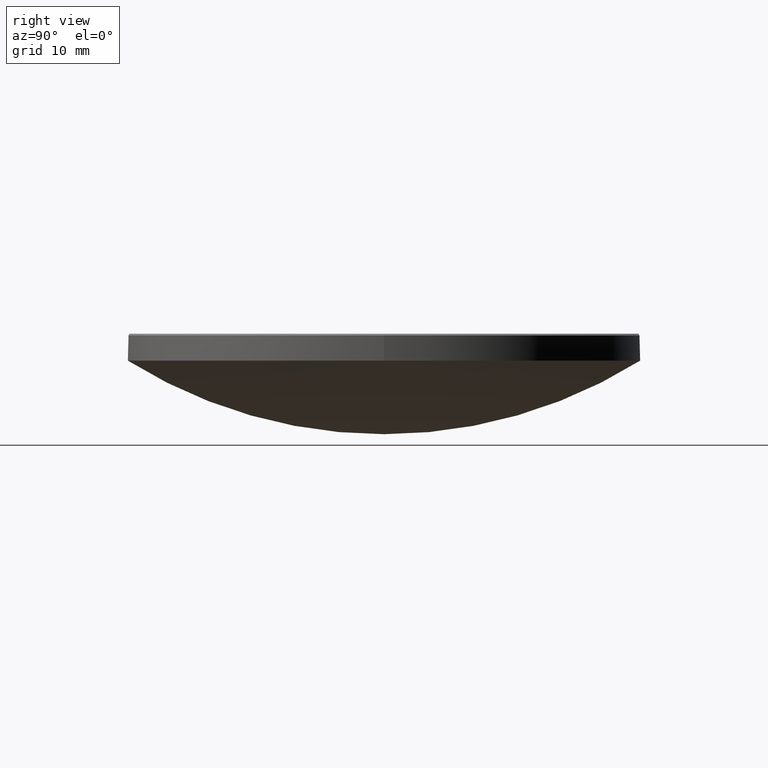
[diagram: clean part render]
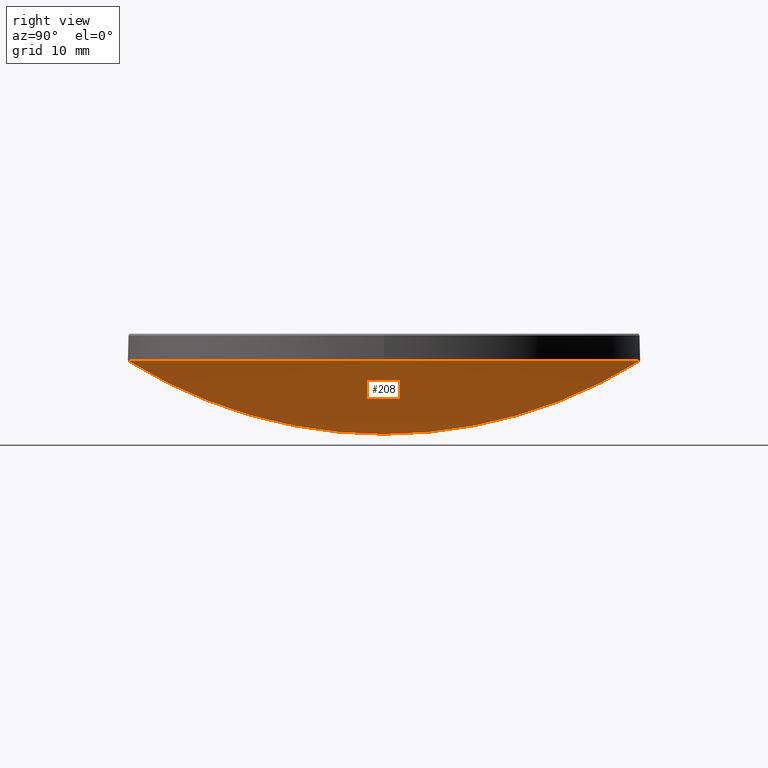
[diagram: same view with one face highlighted and labeled with its STEP entity id]
A machine part, right view. The second image highlights one B-rep face of the part: STEP entity #208.
In plain terms, the highlighted spherical surface has radius 47.87 mm.
Its self-contained STEP definition (entity closure, byte-faithful):
#5 = ORIENTED_EDGE ( 'NONE', *, *, #136, .F. ) ;
#6 = DIRECTION ( 'NONE',  ( -1.224646799147353207E-16, -1.000000000000000000, 0.000000000000000000 ) ) ;
#9 = SPHERICAL_SURFACE ( 'NONE', #123, 47.86999999999999744 ) ;
#20 = CIRCLE ( 'NONE', #178, 47.86999999999999744 ) ;
#21 = CARTESIAN_POINT ( 'NONE',  ( 25.39999999999999503, 3.110602869834276471E-15, 13.00000000000000000 ) ) ;
#22 = DIRECTION ( 'NONE',  ( 1.000000000000000000, 0.000000000000000000, 0.000000000000000000 ) ) ;
#26 = ORIENTED_EDGE ( 'NONE', *, *, #221, .F. ) ;
#28 = DIRECTION ( 'NONE',  ( -1.000000000000000000, 1.224646799147353207E-16, 0.000000000000000000 ) ) ;
#30 = CARTESIAN_POINT ( 'NONE',  ( 0.000000000000000000, 0.000000000000000000, 53.57557023628872628 ) ) ;
#36 = ORIENTED_EDGE ( 'NONE', *, *, #191, .F. ) ;
#52 = EDGE_LOOP ( 'NONE', ( #26, #116, #36, #5 ) ) ;
#59 = DIRECTION ( 'NONE',  ( 1.000000000000000000, 0.000000000000000000, 0.000000000000000000 ) ) ;
#70 = VERTEX_POINT ( 'NONE', #215 ) ;
#82 = CIRCLE ( 'NONE', #278, 25.39999999999999503 ) ;
#94 = VERTEX_POINT ( 'NONE', #21 ) ;
#104 = VERTEX_POINT ( 'NONE', #250 ) ;
#107 = DIRECTION ( 'NONE',  ( -0.000000000000000000, -0.000000000000000000, 1.000000000000000000 ) ) ;
#110 = AXIS2_PLACEMENT_3D ( 'NONE', #187, #107, #59 ) ;
#116 = ORIENTED_EDGE ( 'NONE', *, *, #237, .T. ) ;
#119 = DIRECTION ( 'NONE',  ( 0.000000000000000000, 0.000000000000000000, -1.000000000000000000 ) ) ;
#121 = VERTEX_POINT ( 'NONE', #126 ) ;
#122 = DIRECTION ( 'NONE',  ( -1.000000000000000000, 0.000000000000000000, 0.000000000000000000 ) ) ;
#123 = AXIS2_PLACEMENT_3D ( 'NONE', #249, #122, #161 ) ;
#126 = CARTESIAN_POINT ( 'NONE',  ( 0.000000000000000000, 2.931192113759189857E-15, 5.705570236288731500 ) ) ;
#136 = EDGE_CURVE ( 'NONE', #104, #94, #82, .T. ) ;
#156 = CARTESIAN_POINT ( 'NONE',  ( 0.000000000000000000, 0.000000000000000000, 13.00000000000000000 ) ) ;
#161 = DIRECTION ( 'NONE',  ( 0.000000000000000000, 1.000000000000000000, 0.000000000000000000 ) ) ;
#167 = CIRCLE ( 'NONE', #263, 47.86999999999999744 ) ;
#178 = AXIS2_PLACEMENT_3D ( 'NONE', #30, #275, #119 ) ;
#187 = CARTESIAN_POINT ( 'NONE',  ( 0.000000000000000000, 0.000000000000000000, 13.00000000000000000 ) ) ;
#191 = EDGE_CURVE ( 'NONE', #94, #70, #277, .T. ) ;
#208 = ADVANCED_FACE ( 'NONE', ( #274 ), #9, .T. ) ;
#215 = CARTESIAN_POINT ( 'NONE',  ( 0.000000000000000000, 25.39999999999999858, 12.99999999999999822 ) ) ;
#221 = EDGE_CURVE ( 'NONE', #121, #104, #167, .T. ) ;
#237 = EDGE_CURVE ( 'NONE', #121, #70, #20, .T. ) ;
#241 = DIRECTION ( 'NONE',  ( -0.000000000000000000, -0.000000000000000000, 1.000000000000000000 ) ) ;
#244 = CARTESIAN_POINT ( 'NONE',  ( 0.000000000000000000, 0.000000000000000000, 53.57557023628872628 ) ) ;
#249 = CARTESIAN_POINT ( 'NONE',  ( 0.000000000000000000, 0.000000000000000000, 53.57557023628872628 ) ) ;
#250 = CARTESIAN_POINT ( 'NONE',  ( -3.110602869834276865E-15, -25.39999999999999858, 12.99999999999999822 ) ) ;
#263 = AXIS2_PLACEMENT_3D ( 'NONE', #244, #28, #6 ) ;
#274 = FACE_OUTER_BOUND ( 'NONE', #52, .T. ) ;
#275 = DIRECTION ( 'NONE',  ( 1.000000000000000000, -0.000000000000000000, 0.000000000000000000 ) ) ;
#277 = CIRCLE ( 'NONE', #110, 25.39999999999999503 ) ;
#278 = AXIS2_PLACEMENT_3D ( 'NONE', #156, #241, #22 ) ;